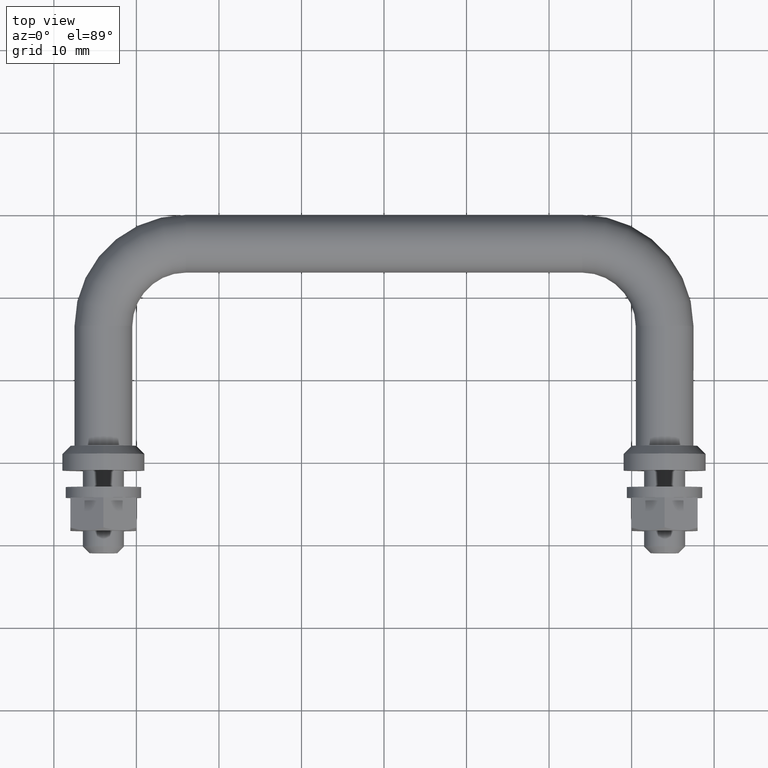
[diagram: clean part render]
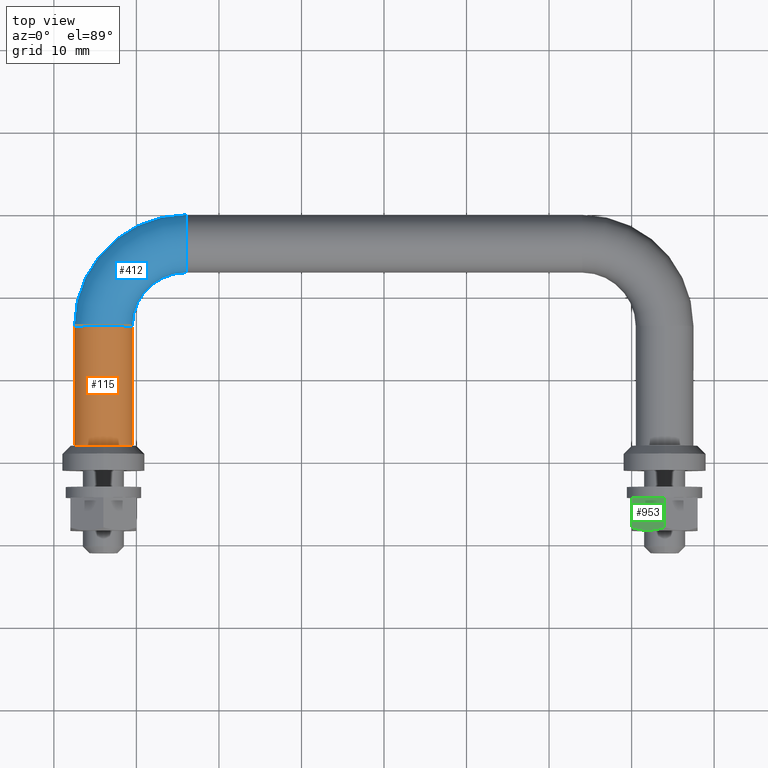
[diagram: same view with three faces highlighted in distinct colors, each labeled with its STEP entity id]
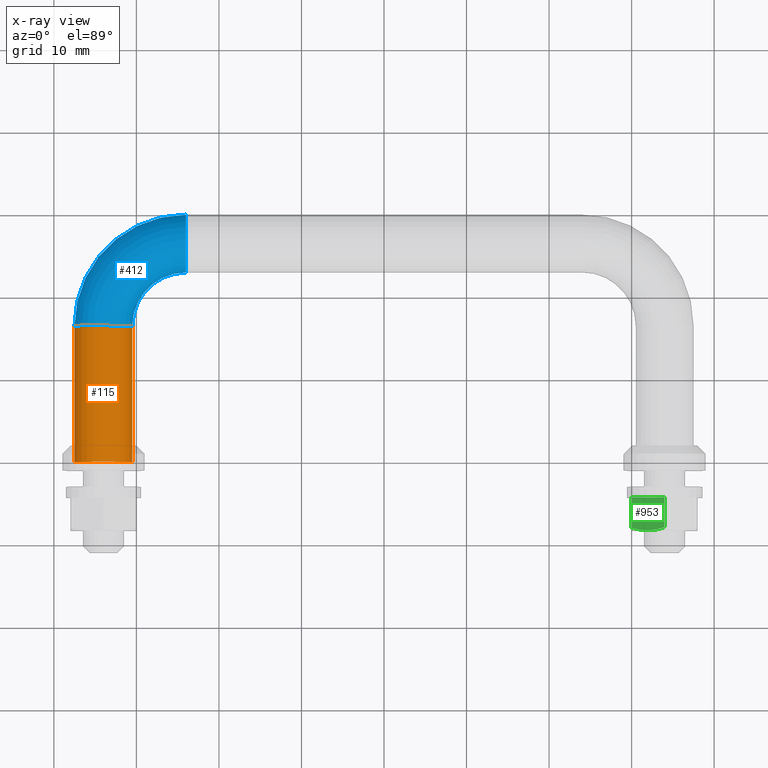
[diagram: x-ray of the same camera — body ghosted, the three highlighted faces saturated]
A machine part, top view with three faces highlighted in distinct colors.
The next image is the same camera in x-ray (body ghosted, the three faces saturated) — at least one of them is partly hidden behind the body in this view.
Their STEP definitions:

[orange] entity #115 — the highlighted cylindrical surface (edge-blend (fillet) strip) has radius 3.5 mm, axis along (0, -1, 0).
#54 = VERTEX_POINT ( 'NONE', #515 ) ;
#115 = ADVANCED_FACE ( 'NONE', ( #1541 ), #370, .T. ) ;
#330 = CARTESIAN_POINT ( 'NONE',  ( -30.50000000000000400, 16.50000000000001100, 0.0000000000000000000 ) ) ;
#338 = CARTESIAN_POINT ( 'NONE',  ( -30.49999999999999600, 0.0000000000000000000, 0.0000000000000000000 ) ) ;
#348 = DIRECTION ( 'NONE',  ( 4.205390244792256900E-016, -1.000000000000000000, -0.0000000000000000000 ) ) ;
#351 = VERTEX_POINT ( 'NONE', #330 ) ;
#370 = CYLINDRICAL_SURFACE ( 'NONE', #1693, 3.499999999999999600 ) ;
#389 = CARTESIAN_POINT ( 'NONE',  ( -37.50000000000000700, 16.50000000000001100, 4.286263797015736600E-016 ) ) ;
#408 = EDGE_CURVE ( 'NONE', #1365, #817, #1757, .T. ) ;
#433 = ORIENTED_EDGE ( 'NONE', *, *, #1581, .F. ) ;
#469 = ORIENTED_EDGE ( 'NONE', *, *, #408, .T. ) ;
#514 = VECTOR ( 'NONE', #1146, 1000.000000000000000 ) ;
#515 = CARTESIAN_POINT ( 'NONE',  ( -37.50000000000000700, 16.50000000000001100, 4.286263797015732700E-016 ) ) ;
#517 = VECTOR ( 'NONE', #812, 1000.000000000000000 ) ;
#524 = CARTESIAN_POINT ( 'NONE',  ( -34.00000000000000000, 16.50000000000001100, 0.0000000000000000000 ) ) ;
#545 = EDGE_CURVE ( 'NONE', #351, #817, #551, .T. ) ;
#551 = LINE ( 'NONE', #1692, #514 ) ;
#556 = CIRCLE ( 'NONE', #871, 3.500000000000000000 ) ;
#654 = DIRECTION ( 'NONE',  ( 0.0000000000000000000, 1.000000000000000000, 0.0000000000000000000 ) ) ;
#668 = DIRECTION ( 'NONE',  ( 0.0000000000000000000, 0.0000000000000000000, 1.000000000000000000 ) ) ;
#714 = DIRECTION ( 'NONE',  ( 1.000000000000000000, 0.0000000000000000000, 0.0000000000000000000 ) ) ;
#812 = DIRECTION ( 'NONE',  ( 4.205390244792256900E-016, -1.000000000000000000, -0.0000000000000000000 ) ) ;
#817 = VERTEX_POINT ( 'NONE', #338 ) ;
#821 = ORIENTED_EDGE ( 'NONE', *, *, #1593, .T. ) ;
#851 = CARTESIAN_POINT ( 'NONE',  ( -34.00000000000000000, 16.50000000000001100, 0.0000000000000000000 ) ) ;
#871 = AXIS2_PLACEMENT_3D ( 'NONE', #524, #1488, #668 ) ;
#884 = LINE ( 'NONE', #389, #517 ) ;
#1095 = AXIS2_PLACEMENT_3D ( 'NONE', #1471, #654, #1607 ) ;
#1146 = DIRECTION ( 'NONE',  ( 4.205390244792256900E-016, -1.000000000000000000, -0.0000000000000000000 ) ) ;
#1365 = VERTEX_POINT ( 'NONE', #1773 ) ;
#1471 = CARTESIAN_POINT ( 'NONE',  ( -33.99999999999999300, 0.0000000000000000000, 0.0000000000000000000 ) ) ;
#1488 = DIRECTION ( 'NONE',  ( 0.0000000000000000000, 1.000000000000000000, 0.0000000000000000000 ) ) ;
#1541 = FACE_OUTER_BOUND ( 'NONE', #1650, .T. ) ;
#1581 = EDGE_CURVE ( 'NONE', #54, #351, #556, .T. ) ;
#1593 = EDGE_CURVE ( 'NONE', #54, #1365, #884, .T. ) ;
#1607 = DIRECTION ( 'NONE',  ( 0.0000000000000000000, 0.0000000000000000000, 1.000000000000000000 ) ) ;
#1650 = EDGE_LOOP ( 'NONE', ( #433, #821, #469, #1730 ) ) ;
#1692 = CARTESIAN_POINT ( 'NONE',  ( -30.50000000000000400, 16.50000000000001100, 0.0000000000000000000 ) ) ;
#1693 = AXIS2_PLACEMENT_3D ( 'NONE', #851, #348, #714 ) ;
#1730 = ORIENTED_EDGE ( 'NONE', *, *, #545, .F. ) ;
#1757 = CIRCLE ( 'NONE', #1095, 3.500000000000000000 ) ;
#1773 = CARTESIAN_POINT ( 'NONE',  ( -37.50000000000000000, 0.0000000000000000000, 4.286263797015732700E-016 ) ) ;

[blue] entity #412 — the highlighted toroidal blend (fillet) surface has major radius 10 mm and minor (blend) radius 3.5 mm.
#25 = DIRECTION ( 'NONE',  ( -0.0000000000000000000, -0.0000000000000000000, -1.000000000000000000 ) ) ;
#54 = VERTEX_POINT ( 'NONE', #515 ) ;
#85 = CARTESIAN_POINT ( 'NONE',  ( -23.99999999999999600, 16.50000000000000000, 0.0000000000000000000 ) ) ;
#189 = ORIENTED_EDGE ( 'NONE', *, *, #585, .F. ) ;
#330 = CARTESIAN_POINT ( 'NONE',  ( -30.50000000000000400, 16.50000000000001100, 0.0000000000000000000 ) ) ;
#351 = VERTEX_POINT ( 'NONE', #330 ) ;
#388 = ORIENTED_EDGE ( 'NONE', *, *, #1581, .T. ) ;
#396 = DIRECTION ( 'NONE',  ( -0.0000000000000000000, -0.0000000000000000000, -1.000000000000000000 ) ) ;
#397 = VERTEX_POINT ( 'NONE', #1059 ) ;
#412 = ADVANCED_FACE ( 'NONE', ( #1380 ), #1010, .T. ) ;
#424 = CARTESIAN_POINT ( 'NONE',  ( -23.99999999999998600, 26.50000000000000400, 0.0000000000000000000 ) ) ;
#511 = DIRECTION ( 'NONE',  ( -0.0000000000000000000, -0.0000000000000000000, -1.000000000000000000 ) ) ;
#515 = CARTESIAN_POINT ( 'NONE',  ( -37.50000000000000700, 16.50000000000001100, 4.286263797015732700E-016 ) ) ;
#524 = CARTESIAN_POINT ( 'NONE',  ( -34.00000000000000000, 16.50000000000001100, 0.0000000000000000000 ) ) ;
#556 = CIRCLE ( 'NONE', #871, 3.500000000000000000 ) ;
#562 = DIRECTION ( 'NONE',  ( 0.0000000000000000000, 0.0000000000000000000, 1.000000000000000000 ) ) ;
#573 = EDGE_LOOP ( 'NONE', ( #680, #388, #1647, #189 ) ) ;
#585 = EDGE_CURVE ( 'NONE', #397, #1636, #1154, .T. ) ;
#668 = DIRECTION ( 'NONE',  ( 0.0000000000000000000, 0.0000000000000000000, 1.000000000000000000 ) ) ;
#680 = ORIENTED_EDGE ( 'NONE', *, *, #1800, .F. ) ;
#773 = AXIS2_PLACEMENT_3D ( 'NONE', #424, #1392, #562 ) ;
#871 = AXIS2_PLACEMENT_3D ( 'NONE', #524, #1488, #668 ) ;
#873 = CARTESIAN_POINT ( 'NONE',  ( -23.99999999999999600, 16.50000000000000000, 4.286263797015736600E-016 ) ) ;
#1010 = TOROIDAL_SURFACE ( 'NONE', #1264, 10.00000000000000500, 3.500000000000000000 ) ;
#1012 = DIRECTION ( 'NONE',  ( -1.000000000000000000, 0.0000000000000000000, 0.0000000000000000000 ) ) ;
#1059 = CARTESIAN_POINT ( 'NONE',  ( -23.99999999999998600, 30.00000000000000400, 0.0000000000000000000 ) ) ;
#1154 = CIRCLE ( 'NONE', #773, 3.500000000000000000 ) ;
#1225 = CARTESIAN_POINT ( 'NONE',  ( -23.99999999999999600, 16.50000000000000000, 0.0000000000000000000 ) ) ;
#1264 = AXIS2_PLACEMENT_3D ( 'NONE', #85, #511, #1767 ) ;
#1361 = DIRECTION ( 'NONE',  ( -1.000000000000000000, 0.0000000000000000000, 0.0000000000000000000 ) ) ;
#1380 = FACE_OUTER_BOUND ( 'NONE', #573, .T. ) ;
#1392 = DIRECTION ( 'NONE',  ( 1.000000000000000000, 6.123233995736766000E-017, 0.0000000000000000000 ) ) ;
#1488 = DIRECTION ( 'NONE',  ( 0.0000000000000000000, 1.000000000000000000, 0.0000000000000000000 ) ) ;
#1511 = AXIS2_PLACEMENT_3D ( 'NONE', #873, #25, #1012 ) ;
#1542 = CIRCLE ( 'NONE', #1796, 13.50000000000000900 ) ;
#1548 = CARTESIAN_POINT ( 'NONE',  ( -23.99999999999998600, 23.00000000000000400, 4.286263797015741000E-016 ) ) ;
#1581 = EDGE_CURVE ( 'NONE', #54, #351, #556, .T. ) ;
#1633 = EDGE_CURVE ( 'NONE', #351, #1636, #1731, .T. ) ;
#1636 = VERTEX_POINT ( 'NONE', #1548 ) ;
#1647 = ORIENTED_EDGE ( 'NONE', *, *, #1633, .T. ) ;
#1731 = CIRCLE ( 'NONE', #1511, 6.500000000000005300 ) ;
#1767 = DIRECTION ( 'NONE',  ( -1.000000000000000000, 0.0000000000000000000, 0.0000000000000000000 ) ) ;
#1796 = AXIS2_PLACEMENT_3D ( 'NONE', #1225, #396, #1361 ) ;
#1800 = EDGE_CURVE ( 'NONE', #54, #397, #1542, .T. ) ;

[green] entity #953 — the highlighted planar face has unit normal (0.5, 0, -0.866).
#24 = CARTESIAN_POINT ( 'NONE',  ( 4.000000000000000000, 7.942734720925199300, 2.309400000000000100 ) ) ;
#36 = CARTESIAN_POINT ( 'NONE',  ( 0.0000000000000000000, 1004.300000000000000, 4.618800000000000200 ) ) ;
#56 = CARTESIAN_POINT ( 'NONE',  ( -2.005864111910810200E-016, 7.942735653425469200, 4.618800000000000200 ) ) ;
#88 = CARTESIAN_POINT ( 'NONE',  ( 1.999999300624725000, 8.300000000000000700, 3.464102018922170100 ) ) ;
#145 = ORIENTED_EDGE ( 'NONE', *, *, #310, .T. ) ;
#157 = VECTOR ( 'NONE', #781, 1000.000000000000000 ) ;
#167 = CARTESIAN_POINT ( 'NONE',  ( 3.345653489880579600, 8.160850351419696800, 2.687186957617438800 ) ) ;
#209 = EDGE_CURVE ( 'NONE', #564, #1327, #1760, .T. ) ;
#213 = AXIS2_PLACEMENT_3D ( 'NONE', #36, #331, #1294 ) ;
#310 = EDGE_CURVE ( 'NONE', #1792, #1099, #1133, .T. ) ;
#331 = DIRECTION ( 'NONE',  ( -0.4999998251561803000, 0.0000000000000000000, -0.8660255047305415200 ) ) ;
#373 = CARTESIAN_POINT ( 'NONE',  ( 4.000000000000000000, 4.299999999999999800, 2.309400000000000100 ) ) ;
#407 = VECTOR ( 'NONE', #1266, 1000.000000000000000 ) ;
#452 = CARTESIAN_POINT ( 'NONE',  ( 1.999999300624725000, 8.300000000000000700, 3.464102018922170100 ) ) ;
#460 = CARTESIAN_POINT ( 'NONE',  ( 0.6554355894507595300, 8.141325537102737500, 4.240384262430603200 ) ) ;
#496 = CARTESIAN_POINT ( 'NONE',  ( 0.0000000000000000000, 4.299999999999999800, 4.618800000000000200 ) ) ;
#497 = CARTESIAN_POINT ( 'NONE',  ( 4.000000000000000000, 1004.300000000000000, 2.309400000000000100 ) ) ;
#498 = ORIENTED_EDGE ( 'NONE', *, *, #772, .T. ) ;
#510 = ORIENTED_EDGE ( 'NONE', *, *, #1263, .F. ) ;
#537 = LINE ( 'NONE', #497, #157 ) ;
#564 = VERTEX_POINT ( 'NONE', #1292 ) ;
#597 = CARTESIAN_POINT ( 'NONE',  ( 1.660530684948319700, 8.300000814133117200, 3.660092609045084300 ) ) ;
#603 = CARTESIAN_POINT ( 'NONE',  ( -2.005864111910810200E-016, 7.942735653425469200, 4.618800000000000200 ) ) ;
#641 = CARTESIAN_POINT ( 'NONE',  ( 0.0000000000000000000, 4.299999999999999800, 4.618800000000000200 ) ) ;
#772 = EDGE_CURVE ( 'NONE', #1327, #1792, #1241, .T. ) ;
#781 = DIRECTION ( 'NONE',  ( 0.0000000000000000000, -1.000000000000000000, 0.0000000000000000000 ) ) ;
#953 = ADVANCED_FACE ( 'NONE', ( #1192 ), #1152, .F. ) ;
#1006 = CARTESIAN_POINT ( 'NONE',  ( 1.999999300624725000, 8.300000000000000700, 3.464102018922170100 ) ) ;
#1072 = VECTOR ( 'NONE', #1321, 1000.000000000000100 ) ;
#1099 = VERTEX_POINT ( 'NONE', #641 ) ;
#1133 = LINE ( 'NONE', #1694, #407 ) ;
#1152 = PLANE ( 'NONE',  #213 ) ;
#1192 = FACE_OUTER_BOUND ( 'NONE', #1660, .T. ) ;
#1241 = B_SPLINE_CURVE_WITH_KNOTS ( 'NONE', 3,
 ( #452, #597, #1287, #460, #1429, #603 ),
 .UNSPECIFIED., .F., .F.,
 ( 4, 2, 4 ),
 ( 0.002336975445621345600, 0.003500976285180903500, 0.004664977124740462600 ),
 .UNSPECIFIED. ) ;
#1263 = EDGE_CURVE ( 'NONE', #564, #1330, #537, .T. ) ;
#1266 = DIRECTION ( 'NONE',  ( 0.0000000000000000000, -1.000000000000000000, 0.0000000000000000000 ) ) ;
#1287 = CARTESIAN_POINT ( 'NONE',  ( 1.321504485966254400, 8.265790581801134400, 3.855829385027379700 ) ) ;
#1292 = CARTESIAN_POINT ( 'NONE',  ( 4.000000000000000000, 7.942734720925199300, 2.309400000000000100 ) ) ;
#1294 = DIRECTION ( 'NONE',  ( -0.8660255047305415200, 0.0000000000000000000, 0.4999998251561803000 ) ) ;
#1321 = DIRECTION ( 'NONE',  ( 0.8660255047305415200, 0.0000000000000000000, -0.4999998251561803000 ) ) ;
#1327 = VERTEX_POINT ( 'NONE', #88 ) ;
#1330 = VERTEX_POINT ( 'NONE', #373 ) ;
#1410 = EDGE_CURVE ( 'NONE', #1099, #1330, #1505, .T. ) ;
#1429 = CARTESIAN_POINT ( 'NONE',  ( 0.3263563747574987400, 8.051521060957185200, 4.430378147033757800 ) ) ;
#1432 = CARTESIAN_POINT ( 'NONE',  ( 2.681482403796661800, 8.300000794391568300, 3.070646134167990900 ) ) ;
#1505 = LINE ( 'NONE', #496, #1072 ) ;
#1644 = ORIENTED_EDGE ( 'NONE', *, *, #209, .T. ) ;
#1660 = EDGE_LOOP ( 'NONE', ( #510, #1644, #498, #145, #1801 ) ) ;
#1694 = CARTESIAN_POINT ( 'NONE',  ( 0.0000000000000000000, 1004.300000000000000, 4.618800000000000200 ) ) ;
#1760 = B_SPLINE_CURVE_WITH_KNOTS ( 'NONE', 3,
 ( #24, #167, #1432, #1006 ),
 .UNSPECIFIED., .F., .F.,
 ( 4, 4 ),
 ( 2.380737448349173500E-007, 0.002336975445621345600 ),
 .UNSPECIFIED. ) ;
#1792 = VERTEX_POINT ( 'NONE', #56 ) ;
#1801 = ORIENTED_EDGE ( 'NONE', *, *, #1410, .T. ) ;